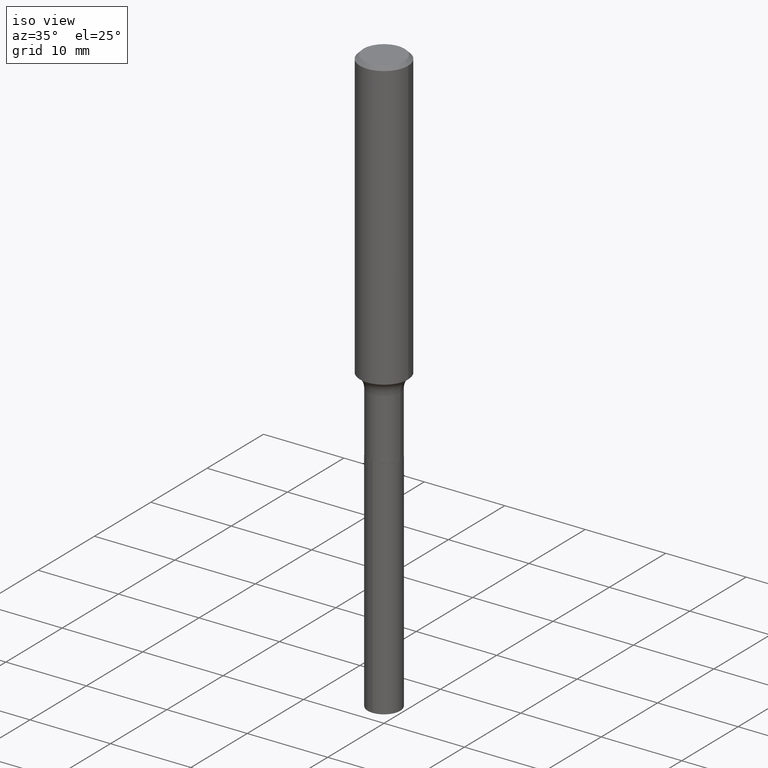
[diagram: clean part render]
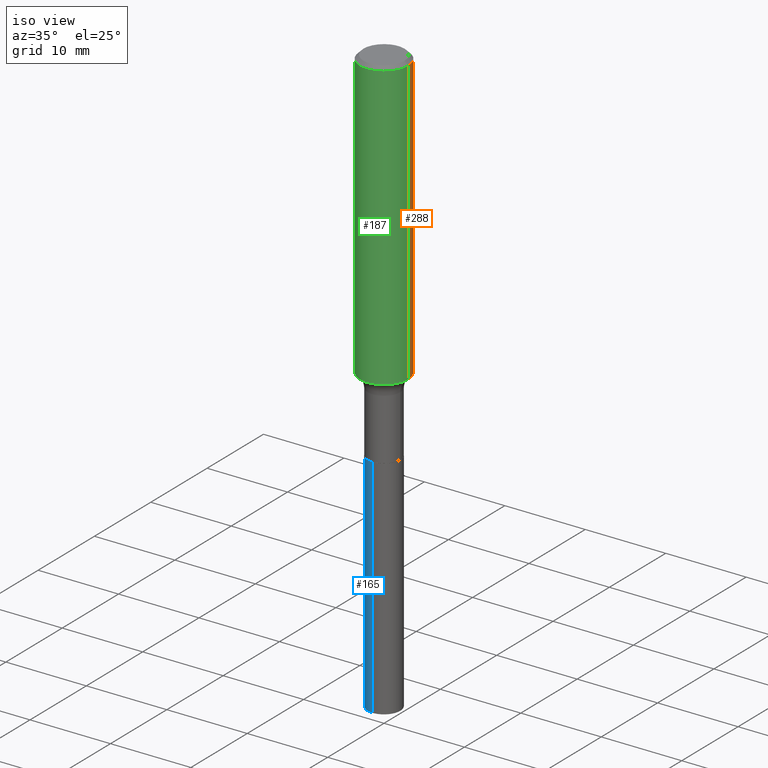
[diagram: same view with three faces highlighted in distinct colors, each labeled with its STEP entity id]
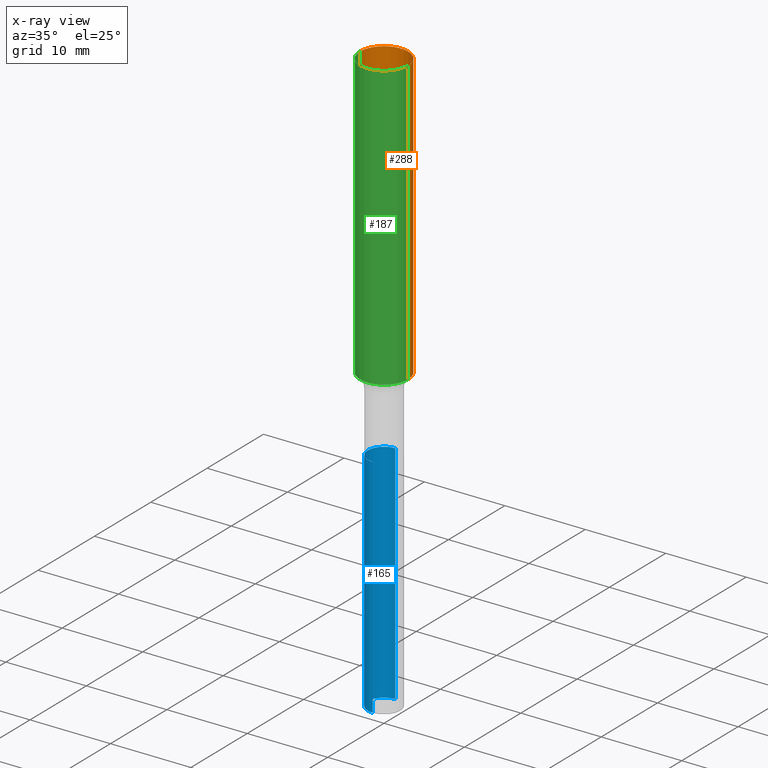
[diagram: x-ray of the same camera — body ghosted, the three highlighted faces saturated]
A machine part, iso view with three faces highlighted in distinct colors.
The next image is the same camera in x-ray (body ghosted, the three faces saturated) — at least one of them is partly hidden behind the body in this view.
Their STEP definitions:

[orange] entity #288 — the highlighted cylindrical surface (edge-blend (fillet) strip) has radius 2.9997 mm, axis along (-0, 0, 1).
#1 = VERTEX_POINT ( 'NONE', #273 ) ;
#7 = AXIS2_PLACEMENT_3D ( 'NONE', #401, #66, #224 ) ;
#11 = EDGE_CURVE ( 'NONE', #409, #300, #159, .T. ) ;
#15 = AXIS2_PLACEMENT_3D ( 'NONE', #32, #470, #295 ) ;
#28 = CARTESIAN_POINT ( 'NONE',  ( 0.1180999999999999966, -8.865394841523548556E-16, -0.01771500000000011607 ) ) ;
#32 = CARTESIAN_POINT ( 'NONE',  ( 4.332147990156998495E-31, -6.185159191760672860E-17, -0.01771500000000011607 ) ) ;
#36 = CIRCLE ( 'NONE', #7, 0.1181000000000001632 ) ;
#38 = ORIENTED_EDGE ( 'NONE', *, *, #323, .T. ) ;
#43 = ORIENTED_EDGE ( 'NONE', *, *, #177, .T. ) ;
#66 = DIRECTION ( 'NONE',  ( -2.445468806185136597E-29, 3.491481338843145583E-15, 1.000000000000000000 ) ) ;
#69 = ORIENTED_EDGE ( 'NONE', *, *, #11, .F. ) ;
#71 = CARTESIAN_POINT ( 'NONE',  ( -0.1181000000000000799, 8.391509709326788873E-16, -5.809262341591047988E-30 ) ) ;
#81 = VECTOR ( 'NONE', #318, 39.37007874015748143 ) ;
#85 = VERTEX_POINT ( 'NONE', #96 ) ;
#96 = CARTESIAN_POINT ( 'NONE',  ( -0.1181000000000001354, -4.065621063523920344E-15, -1.404782543125872252 ) ) ;
#118 = DIRECTION ( 'NONE',  ( 1.000000000000000000, -6.982962677686266711E-15, 4.876176775795936353E-29 ) ) ;
#151 = CARTESIAN_POINT ( 'NONE',  ( 0.000000000000000000, 0.000000000000000000, 0.000000000000000000 ) ) ;
#158 = ORIENTED_EDGE ( 'NONE', *, *, #416, .F. ) ;
#159 = LINE ( 'NONE', #413, #81 ) ;
#177 = EDGE_CURVE ( 'NONE', #409, #85, #36, .T. ) ;
#190 = LINE ( 'NONE', #71, #344 ) ;
#192 = FACE_OUTER_BOUND ( 'NONE', #219, .T. ) ;
#202 = CIRCLE ( 'NONE', #15, 0.1180999999999999966 ) ;
#219 = EDGE_LOOP ( 'NONE', ( #43, #38, #158, #69 ) ) ;
#224 = DIRECTION ( 'NONE',  ( 1.000000000000000000, -6.982962677686270655E-15, 0.000000000000000000 ) ) ;
#225 = AXIS2_PLACEMENT_3D ( 'NONE', #151, #309, #118 ) ;
#268 = DIRECTION ( 'NONE',  ( -2.445468806185136877E-29, 3.491481338843145188E-15, 1.000000000000000000 ) ) ;
#273 = CARTESIAN_POINT ( 'NONE',  ( -0.1180999999999999966, -1.644160842254423384E-15, -0.01771500000000011607 ) ) ;
#288 = ADVANCED_FACE ( 'NONE', ( #192 ), #480, .T. ) ;
#295 = DIRECTION ( 'NONE',  ( 1.000000000000000000, -6.982962677686266711E-15, 0.000000000000000000 ) ) ;
#300 = VERTEX_POINT ( 'NONE', #28 ) ;
#309 = DIRECTION ( 'NONE',  ( -2.445468806185136597E-29, 3.491481338843145583E-15, 1.000000000000000000 ) ) ;
#318 = DIRECTION ( 'NONE',  ( -2.445468806185136877E-29, 3.491481338843145188E-15, 1.000000000000000000 ) ) ;
#323 = EDGE_CURVE ( 'NONE', #85, #1, #190, .T. ) ;
#344 = VECTOR ( 'NONE', #268, 39.37007874015748143 ) ;
#401 = CARTESIAN_POINT ( 'NONE',  ( 3.435351888687746702E-29, -4.904772034456599330E-15, -1.404782543125872252 ) ) ;
#407 = CARTESIAN_POINT ( 'NONE',  ( 0.1181000000000001354, -5.729459926691349170E-15, -1.404782543125872252 ) ) ;
#409 = VERTEX_POINT ( 'NONE', #407 ) ;
#413 = CARTESIAN_POINT ( 'NONE',  ( 0.1181000000000000799, -8.246878922347486570E-16, 5.758764772215004644E-30 ) ) ;
#416 = EDGE_CURVE ( 'NONE', #300, #1, #202, .T. ) ;
#470 = DIRECTION ( 'NONE',  ( -2.445468806185136597E-29, 3.491481338843145583E-15, 1.000000000000000000 ) ) ;
#480 = CYLINDRICAL_SURFACE ( 'NONE', #225, 0.1181000000000000799 ) ;

[blue] entity #165 — the highlighted cylindrical surface (edge-blend (fillet) strip) has radius 2.0193 mm, axis along (-0, 0, 1).
#21 = DIRECTION ( 'NONE',  ( -6.982962677686265922E-15, -1.000000000000000000, 6.872573568966700010E-15 ) ) ;
#42 = VERTEX_POINT ( 'NONE', #488 ) ;
#49 = EDGE_CURVE ( 'NONE', #194, #418, #473, .T. ) ;
#51 = CARTESIAN_POINT ( 'NONE',  ( 5.648814749293502595E-16, 0.07949999999999381173, -1.771300000000000097 ) ) ;
#53 = CARTESIAN_POINT ( 'NONE',  ( -5.551455328760147649E-16, -0.07950000000000617684, -1.771299999999999430 ) ) ;
#80 = EDGE_LOOP ( 'NONE', ( #464, #131, #485, #303 ) ) ;
#89 = AXIS2_PLACEMENT_3D ( 'NONE', #106, #188, #175 ) ;
#97 = DIRECTION ( 'NONE',  ( -2.445355828329575810E-29, 3.491643129562608875E-15, 1.000000000000000000 ) ) ;
#101 = CARTESIAN_POINT ( 'NONE',  ( -5.551455328760147649E-16, -0.07950000000000617684, -1.771299999999999430 ) ) ;
#102 = CARTESIAN_POINT ( 'NONE',  ( 7.044976608651161827E-29, -1.005871798256426244E-14, -2.880879915046105744 ) ) ;
#105 = DIRECTION ( 'NONE',  ( -2.445355828329575810E-29, 3.491643129562608875E-15, 1.000000000000000000 ) ) ;
#106 = CARTESIAN_POINT ( 'NONE',  ( 4.331658896395732410E-29, -6.184460895492863090E-15, -1.771299999999999653 ) ) ;
#131 = ORIENTED_EDGE ( 'NONE', *, *, #138, .T. ) ;
#137 = VERTEX_POINT ( 'NONE', #302 ) ;
#138 = EDGE_CURVE ( 'NONE', #137, #42, #439, .T. ) ;
#165 = ADVANCED_FACE ( 'NONE', ( #221 ), #270, .T. ) ;
#168 = VECTOR ( 'NONE', #105, 39.37007874015748143 ) ;
#175 = DIRECTION ( 'NONE',  ( -6.982962677686265922E-15, -1.000000000000000000, 3.436286784483350005E-15 ) ) ;
#182 = CARTESIAN_POINT ( 'NONE',  ( 5.648814749293228466E-16, 0.07949999999999381173, -1.771300000000000097 ) ) ;
#188 = DIRECTION ( 'NONE',  ( -2.445355828329575810E-29, 3.491643129562608875E-15, 1.000000000000000000 ) ) ;
#194 = VERTEX_POINT ( 'NONE', #51 ) ;
#209 = DIRECTION ( 'NONE',  ( -6.982962677686265922E-15, -1.000000000000000000, 3.436286784483350005E-15 ) ) ;
#221 = FACE_OUTER_BOUND ( 'NONE', #80, .T. ) ;
#239 = AXIS2_PLACEMENT_3D ( 'NONE', #431, #97, #209 ) ;
#250 = EDGE_CURVE ( 'NONE', #42, #418, #392, .T. ) ;
#270 = CYLINDRICAL_SURFACE ( 'NONE', #89, 0.07950000000000000122 ) ;
#302 = CARTESIAN_POINT ( 'NONE',  ( 5.648814749293498651E-16, 0.07949999999998992595, -2.880879915046106188 ) ) ;
#303 = ORIENTED_EDGE ( 'NONE', *, *, #49, .F. ) ;
#345 = EDGE_CURVE ( 'NONE', #137, #194, #444, .T. ) ;
#362 = DIRECTION ( 'NONE',  ( -2.445355828329575810E-29, 3.491643129562608875E-15, 1.000000000000000000 ) ) ;
#371 = DIRECTION ( 'NONE',  ( -2.445355828329575810E-29, 3.491643129562608875E-15, 1.000000000000000000 ) ) ;
#392 = LINE ( 'NONE', #53, #465 ) ;
#418 = VERTEX_POINT ( 'NONE', #101 ) ;
#431 = CARTESIAN_POINT ( 'NONE',  ( 4.331658896395732410E-29, -6.184460895492863090E-15, -1.771299999999999653 ) ) ;
#439 = CIRCLE ( 'NONE', #462, 0.07950000000000000122 ) ;
#444 = LINE ( 'NONE', #182, #168 ) ;
#462 = AXIS2_PLACEMENT_3D ( 'NONE', #102, #371, #21 ) ;
#464 = ORIENTED_EDGE ( 'NONE', *, *, #345, .F. ) ;
#465 = VECTOR ( 'NONE', #362, 39.37007874015748143 ) ;
#473 = CIRCLE ( 'NONE', #239, 0.07950000000000000122 ) ;
#485 = ORIENTED_EDGE ( 'NONE', *, *, #250, .T. ) ;
#488 = CARTESIAN_POINT ( 'NONE',  ( -5.551455328759876478E-16, -0.07950000000001004874, -2.880879915046105744 ) ) ;

[green] entity #187 — the highlighted cylindrical surface (edge-blend (fillet) strip) has radius 2.9997 mm, axis along (-0, 0, 1).
#1 = VERTEX_POINT ( 'NONE', #273 ) ;
#11 = EDGE_CURVE ( 'NONE', #409, #300, #159, .T. ) ;
#27 = FACE_OUTER_BOUND ( 'NONE', #489, .T. ) ;
#28 = CARTESIAN_POINT ( 'NONE',  ( 0.1180999999999999966, -8.865394841523548556E-16, -0.01771500000000011607 ) ) ;
#48 = AXIS2_PLACEMENT_3D ( 'NONE', #326, #99, #257 ) ;
#62 = DIRECTION ( 'NONE',  ( -2.445468806185136597E-29, 3.491481338843145583E-15, 1.000000000000000000 ) ) ;
#71 = CARTESIAN_POINT ( 'NONE',  ( -0.1181000000000000799, 8.391509709326788873E-16, -5.809262341591047988E-30 ) ) ;
#81 = VECTOR ( 'NONE', #318, 39.37007874015748143 ) ;
#85 = VERTEX_POINT ( 'NONE', #96 ) ;
#96 = CARTESIAN_POINT ( 'NONE',  ( -0.1181000000000001354, -4.065621063523920344E-15, -1.404782543125872252 ) ) ;
#99 = DIRECTION ( 'NONE',  ( -2.445468806185136597E-29, 3.491481338843145583E-15, 1.000000000000000000 ) ) ;
#103 = ORIENTED_EDGE ( 'NONE', *, *, #11, .T. ) ;
#117 = ORIENTED_EDGE ( 'NONE', *, *, #323, .F. ) ;
#146 = CYLINDRICAL_SURFACE ( 'NONE', #415, 0.1181000000000000799 ) ;
#159 = LINE ( 'NONE', #413, #81 ) ;
#187 = ADVANCED_FACE ( 'NONE', ( #27 ), #146, .T. ) ;
#190 = LINE ( 'NONE', #71, #344 ) ;
#238 = EDGE_CURVE ( 'NONE', #85, #409, #283, .T. ) ;
#255 = DIRECTION ( 'NONE',  ( 1.000000000000000000, -6.982962677686266711E-15, 4.876176775795936353E-29 ) ) ;
#257 = DIRECTION ( 'NONE',  ( 1.000000000000000000, -6.982962677686270655E-15, 0.000000000000000000 ) ) ;
#268 = DIRECTION ( 'NONE',  ( -2.445468806185136877E-29, 3.491481338843145188E-15, 1.000000000000000000 ) ) ;
#273 = CARTESIAN_POINT ( 'NONE',  ( -0.1180999999999999966, -1.644160842254423384E-15, -0.01771500000000011607 ) ) ;
#283 = CIRCLE ( 'NONE', #48, 0.1181000000000001632 ) ;
#286 = ORIENTED_EDGE ( 'NONE', *, *, #238, .T. ) ;
#291 = EDGE_CURVE ( 'NONE', #1, #300, #450, .T. ) ;
#300 = VERTEX_POINT ( 'NONE', #28 ) ;
#301 = DIRECTION ( 'NONE',  ( -2.445468806185136597E-29, 3.491481338843145583E-15, 1.000000000000000000 ) ) ;
#318 = DIRECTION ( 'NONE',  ( -2.445468806185136877E-29, 3.491481338843145188E-15, 1.000000000000000000 ) ) ;
#322 = ORIENTED_EDGE ( 'NONE', *, *, #291, .F. ) ;
#323 = EDGE_CURVE ( 'NONE', #85, #1, #190, .T. ) ;
#326 = CARTESIAN_POINT ( 'NONE',  ( 3.435351888687746702E-29, -4.904772034456599330E-15, -1.404782543125872252 ) ) ;
#332 = AXIS2_PLACEMENT_3D ( 'NONE', #411, #301, #440 ) ;
#344 = VECTOR ( 'NONE', #268, 39.37007874015748143 ) ;
#407 = CARTESIAN_POINT ( 'NONE',  ( 0.1181000000000001354, -5.729459926691349170E-15, -1.404782543125872252 ) ) ;
#409 = VERTEX_POINT ( 'NONE', #407 ) ;
#411 = CARTESIAN_POINT ( 'NONE',  ( 4.332147990156998495E-31, -6.185159191760672860E-17, -0.01771500000000011607 ) ) ;
#413 = CARTESIAN_POINT ( 'NONE',  ( 0.1181000000000000799, -8.246878922347486570E-16, 5.758764772215004644E-30 ) ) ;
#415 = AXIS2_PLACEMENT_3D ( 'NONE', #429, #62, #255 ) ;
#429 = CARTESIAN_POINT ( 'NONE',  ( 0.000000000000000000, 0.000000000000000000, 0.000000000000000000 ) ) ;
#440 = DIRECTION ( 'NONE',  ( 1.000000000000000000, -6.982962677686266711E-15, 0.000000000000000000 ) ) ;
#450 = CIRCLE ( 'NONE', #332, 0.1180999999999999966 ) ;
#489 = EDGE_LOOP ( 'NONE', ( #117, #286, #103, #322 ) ) ;